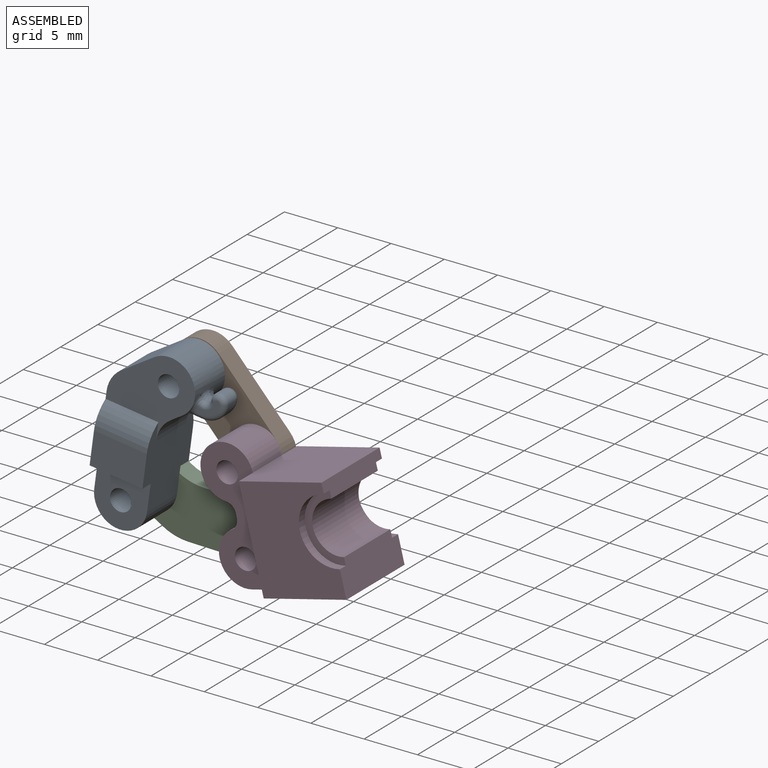
[diagram: assembled view]
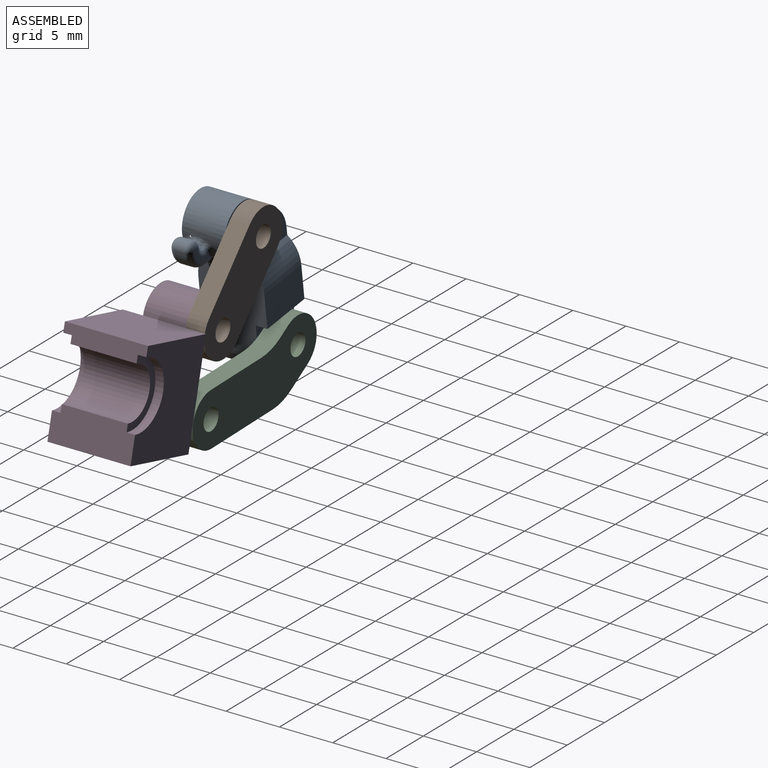
[diagram: assembled view, second angle]
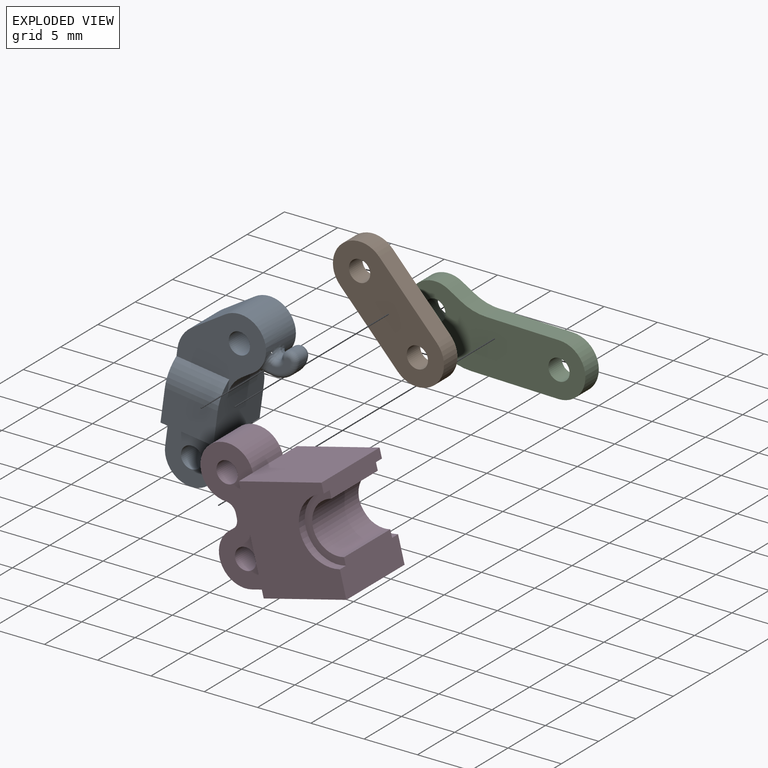
[diagram: exploded view]
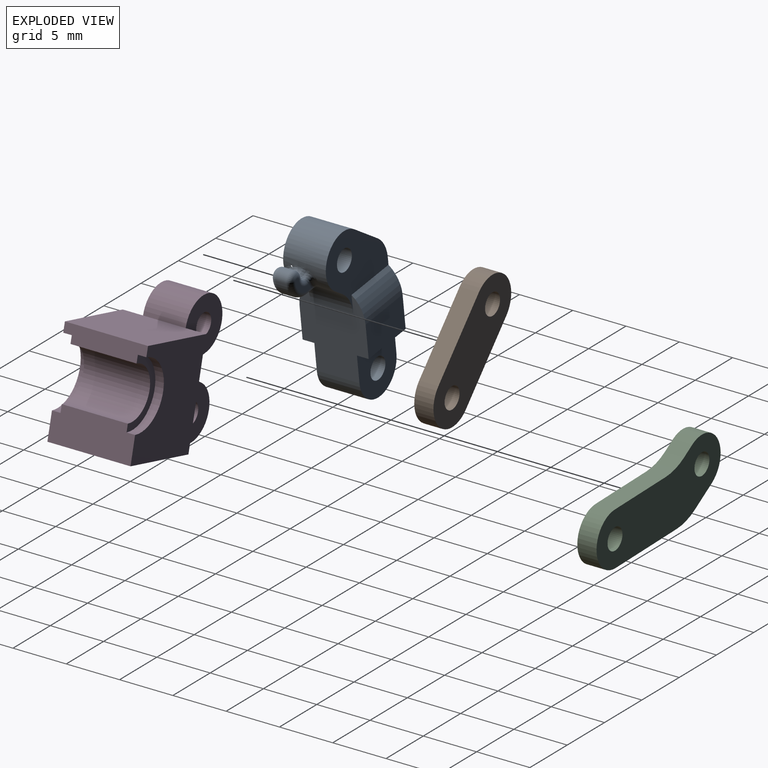
[diagram: exploded view, second angle]
ASSEMBLY  parts=4 mates=4
PART A: 46 faces, bbox 10.6x6.2x16.4 mm
  f0: cylinder r=0.5mm len=0.99mm, axis (0,-1,0), area 0.4mm2, adj f3,f22,f44,f45
  f1: cylinder r=2.5mm len=0.66mm, axis (0,1,0), area 0.2mm2, adj f2,f14,f38
  f2: plane 4x1.02mm, normal (0.64,0,-0.77), area 4.7mm2, adj f1,f3,f6,f14,f15,f40,f42,f43
  f3: cylinder r=2.5mm len=4.42mm, axis (0,1,0), area 25.1mm2, adj f0,f2,f7,f14,f15,f35,f37,f39
  f4: plane 5x5mm, normal (0,-1,0), area 19.2mm2, adj f9,f10,f12,f13,f19
  f5: plane 5x5mm, normal (0,1,0), area 19.2mm2, adj f9,f10,f12,f13,f18
  f6: cylinder r=3mm len=4mm, axis (0,1,0), area 10.5mm2, adj f2,f12,f14,f15
  f7: plane 4x2.82mm, normal (-0.64,0,0.77), area 14.7mm2, adj f3,f8,f14,f15
  f8: cylinder r=3mm len=4mm, axis (0,1,0), area 10.5mm2, adj f7,f9,f14,f15
  f9: plane 8.64x6.2mm, normal (-1,0,0), area 45mm2, adj f4,f5,f8,f10,f14,f15,f16,f17
  f10: cylinder r=2.5mm len=5mm, axis (0,1,0), area 31.4mm2, adj f4,f5,f9,f12
  f11: cylinder r=1mm len=4mm, axis (0,1,0), area 25.1mm2, adj f14,f15
  f12: plane 7.97x6.2mm, normal (1,0,0), area 35.6mm2, adj f4,f5,f6,f10,f14,f15,f16,f17
  f13: cylinder r=1mm len=4mm, axis (0,1,0), area 25.1mm2, adj f4,f5
  f14: plane 8x7.58mm, normal (0,-1,0), area 30.7mm2, adj f1,f2,f3,f6,f7,f8,f9,f11
  f15: plane 8x7.58mm, normal (0,1,0), area 30.7mm2, adj f2,f3,f6,f7,f8,f9,f11,f12
  f16: plane 5x3.1mm, normal (0,1,0), area 15.5mm2, adj f9,f12,f17,f18
  f17: cylinder r=3.1mm len=5mm, axis (-1,0,0), area 13.5mm2, adj f9,f12,f15,f16
  f18: plane 5x1.1mm, normal (0,0,-1), area 5.5mm2, adj f5,f9,f12,f16
  f19: plane 5x1.1mm, normal (0,0,-1), area 5.5mm2, adj f4,f9,f12,f20
  f20: plane 5x3.1mm, normal (0,-1,0), area 15.5mm2, adj f9,f12,f19,f21
  f21: cylinder r=3.1mm len=5mm, axis (-1,0,0), area 13.5mm2, adj f9,f12,f14,f20
  f22: cylinder r=0.75mm len=1.49mm, axis (0,-1,0), area 2.2mm2, adj f0,f24,f28,f32,f44,f45
  f23: plane 1.31x1mm, normal (0,0,-1), area 1.3mm2, adj f24,f30,f34,f42
  f24: cylinder r=2mm len=2mm, axis (0,-1,0), area 3.1mm2, adj f22,f23,f29,f33
  f25: plane 1.89x1.75mm, normal (0,1,0), area 1.2mm2, adj f31,f32,f33,f34,f39
  f26: plane 1.89x1.75mm, normal (0,-1,0), area 1.2mm2, adj f27,f28,f29,f30,f36
  f27: torus R=1mm, axis (0,-1,0), area 0.8mm2, adj f26,f28,f35,f45
  f28: torus R=0.25mm, axis (0,-1,0), area 1.4mm2, adj f22,f26,f27,f29,f45
  f29: torus R=1.5mm, axis (0,-1,0), area 2.2mm2, adj f24,f26,f28,f30
  f30: cylinder r=0.5mm len=1.31mm, axis (1,0,0), area 0.7mm2, adj f23,f26,f29,f38,f40
  f31: torus R=1mm, axis (0,-1,0), area 0.8mm2, adj f25,f32,f37,f44
  f32: torus R=0.25mm, axis (0,-1,0), area 1.4mm2, adj f22,f25,f31,f33,f44
  f33: torus R=1.5mm, axis (0,-1,0), area 2.2mm2, adj f24,f25,f32,f34
  f34: cylinder r=0.5mm len=1.31mm, axis (-1,0,0), area 0.7mm2, adj f23,f25,f33,f41,f43
  f35: bspline ~2.06x2.01mm, area 0.8mm2, adj f3,f27,f36,f45
  f36: torus R=3mm, axis (0,-1,0), area 0.4mm2, adj f14,f26,f35,f38
  f37: bspline ~2.06x2.01mm, area 0.8mm2, adj f3,f31,f39,f44
  f38: bspline ~1.14x0.87mm, area 0.5mm2, adj f1,f30,f36,f40
  f39: torus R=3mm, axis (0,-1,0), area 0.4mm2, adj f3,f25,f37,f41
  f40: bspline ~0.63x0.59mm, area 0.2mm2, adj f2,f30,f38,f42
  f41: bspline ~1.13x0.79mm, area 0.5mm2, adj f3,f34,f39,f43
  f42: cylinder r=0.5mm len=1mm, axis (0,1,0), area 0.3mm2, adj f2,f23,f40,f43
  f43: bspline ~0.62x0.57mm, area 0.2mm2, adj f2,f34,f41,f42
  f44: bspline ~1.03x0.76mm, area 0.7mm2, adj f0,f3,f22,f31,f32,f37
  f45: bspline ~1.03x0.76mm, area 0.8mm2, adj f0,f3,f22,f27,f28,f35
PART B: 8 faces, bbox 13x1.8x5 mm
  f0: plane 8x1.8mm, normal (0,0,-1), area 14.4mm2, adj f1,f5,f6,f7
  f1: cylinder r=2.5mm len=5mm, axis (0,1,0), area 14.1mm2, adj f0,f2,f6,f7
  f2: plane 8x1.8mm, normal (0,0,1), area 14.4mm2, adj f1,f5,f6,f7
  f3: cylinder r=1mm len=2mm, axis (0,1,0), area 11.3mm2, adj f6,f7
  f4: cylinder r=1mm len=2mm, axis (0,1,0), area 11.3mm2, adj f6,f7
  f5: cylinder r=2.5mm len=5mm, axis (0,1,0), area 14.1mm2, adj f0,f2,f6,f7
  f6: plane 13x5mm, normal (0,-1,0), area 53.4mm2, adj f0,f1,f2,f3,f4,f5
  f7: plane 13x5mm, normal (0,1,0), area 53.4mm2, adj f0,f1,f2,f3,f4,f5
PART C: 12 faces, bbox 16.6x1.8x7.8 mm
  f0: plane 2.55x1.8mm, normal (-0.19,0,-0.98), area 4.7mm2, adj f6,f8,f9,f10
  f1: plane 7.71x2.69mm, normal (0.33,0,-0.94), area 14.7mm2, adj f2,f8,f9,f10
  f2: cylinder r=2.5mm len=4.86mm, axis (0,1,0), area 14.1mm2, adj f1,f3,f8,f9
  f3: plane 6.45x2.25mm, normal (-0.33,0,0.94), area 12.3mm2, adj f2,f8,f9,f11
  f4: plane 1.8x1.24mm, normal (0.19,0,0.98), area 2.3mm2, adj f6,f8,f9,f11
  f5: cylinder r=1mm len=2mm, axis (0,1,0), area 11.3mm2, adj f8,f9
  f6: cylinder r=2.5mm len=4.96mm, axis (0,1,0), area 14.1mm2, adj f0,f4,f8,f9
  f7: cylinder r=1mm len=2mm, axis (0,1,0), area 11.3mm2, adj f8,f9
  f8: plane 16.56x7.83mm, normal (0,-1,0), area 73.9mm2, adj f0,f1,f2,f3,f4,f5,f6,f7
  f9: plane 16.56x7.83mm, normal (0,1,0), area 73.9mm2, adj f0,f1,f2,f3,f4,f5,f6,f7
  f10: cylinder r=5mm len=2.58mm, axis (0,1,0), area 4.7mm2, adj f0,f1,f8,f9
  f11: cylinder r=5mm len=2.58mm, axis (0,-1,0), area 4.7mm2, adj f3,f4,f8,f9
PART D: 22 faces, bbox 13x7.8x12.1 mm
  f0: plane 9.6x1.9mm, normal (-1,0,0), area 18.2mm2, adj f3,f7,f9,f19
  f1: cylinder r=3.1mm len=6.2mm, axis (0,1,0), area 7.8mm2, adj f4,f6,f9,f12
  f2: plane 9.6x1.9mm, normal (-1,0,0), area 18.2mm2, adj f3,f7,f8,f18
  f3: plane 10.5x7.8mm, normal (0,0,-1), area 72.4mm2, adj f0,f2,f4,f8,f9,f15,f18,f19
  f4: plane 7.8x3.2mm, normal (1,0,0), area 23.8mm2, adj f1,f3,f5,f8,f9,f10,f11,f12
  f5: cylinder r=3.1mm len=6.2mm, axis (0,1,0), area 7.8mm2, adj f4,f6,f8,f11
  f6: plane 7.8x1.6mm, normal (1,0,0), area 11.4mm2, adj f1,f5,f7,f8,f9,f10,f11,f12
  f7: plane 8x7.8mm, normal (0,0,1), area 62.4mm2, adj f0,f2,f6,f8,f9,f13
  f8: plane 9.6x8mm, normal (0,-1,0), area 61.7mm2, adj f2,f3,f4,f5,f6,f7
  f9: plane 9.6x8mm, normal (0,1,0), area 61.7mm2, adj f0,f1,f3,f4,f6,f7
  f10: cylinder r=2.4mm len=6.2mm, axis (0,1,0), area 46.7mm2, adj f4,f6,f11,f12
  f11: plane 6.2x3.1mm, normal (0,-1,0), area 6mm2, adj f4,f5,f6,f10
  f12: plane 6.2x3.1mm, normal (0,1,0), area 6mm2, adj f1,f4,f6,f10
  f13: cylinder r=2.5mm len=5mm, axis (0,1,0), area 44.2mm2, adj f7,f18,f19,f20
  f14: plane 4x0.39mm, normal (-1,0,0), area 1.6mm2, adj f18,f19,f20,f21
  f15: cylinder r=2.5mm len=4.9mm, axis (0,1,0), area 28.5mm2, adj f3,f18,f19,f21
  f16: cylinder r=1mm len=4mm, axis (0,1,0), area 25.1mm2, adj f18,f19
  f17: cylinder r=1mm len=4mm, axis (0,1,0), area 25.1mm2, adj f18,f19
  f18: plane 12.1x5mm, normal (0,-1,0), area 42.5mm2, adj f2,f3,f13,f14,f15,f16,f17,f20
  f19: plane 12.1x5mm, normal (0,1,0), area 42.5mm2, adj f0,f3,f13,f14,f15,f16,f17,f20
  f20: cylinder r=1mm len=4mm, axis (0,1,0), area 5.1mm2, adj f13,f14,f18,f19
  f21: cylinder r=1mm len=4mm, axis (0,1,0), area 5.1mm2, adj f14,f15,f18,f19
PLACE A rot(axis=(0,1,0),7.7deg) t=(7.98,-6.73,5.14)mm
PLACE B rot(axis=(0,1,0),47.3deg) t=(-0.1,-2.83,-13.55)mm
PLACE C rot(axis=(0,1,0),20.5deg) t=(11.89,-2.73,-5.63)mm
PLACE D rot(axis=(0,-1,0),14.1deg) t=(6.97,-6.63,4.39)mm
MATE revolute B.f4 <-> A.f1  axis (0,1,0) through (-9.75,-3.73,12.11)mm
MATE revolute D.f15 <-> C.f7  axis (0,1,0) through (-2.59,-6.63,-0.65)mm
MATE revolute A.f10 <-> C.f5  axis (0,1,0) through (-14.24,-6.73,1.24)mm
MATE revolute B.f1 <-> D.f13  axis (0,-1,0) through (-4.32,-4.63,6.23)mm
